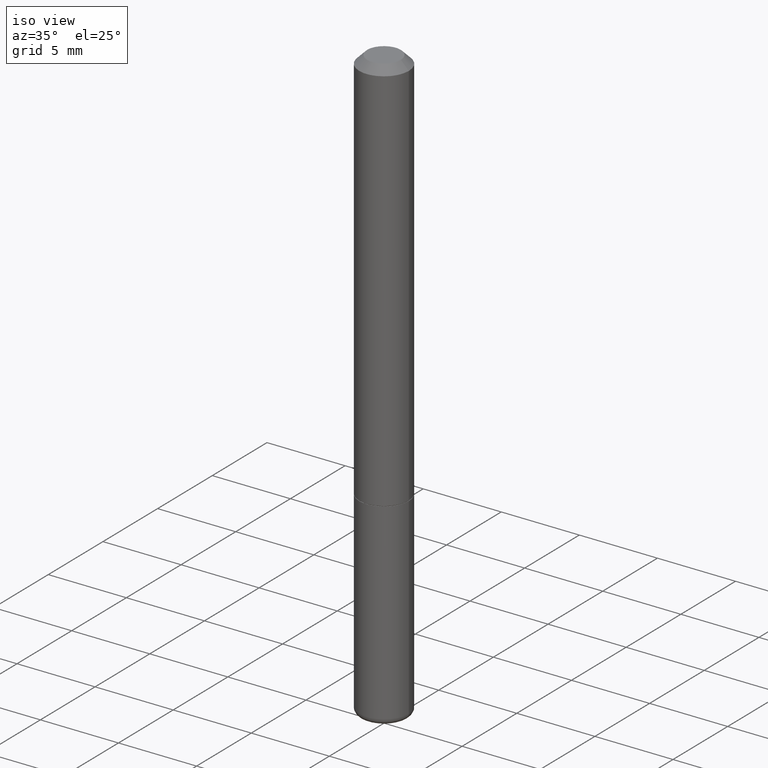
[diagram: clean part render]
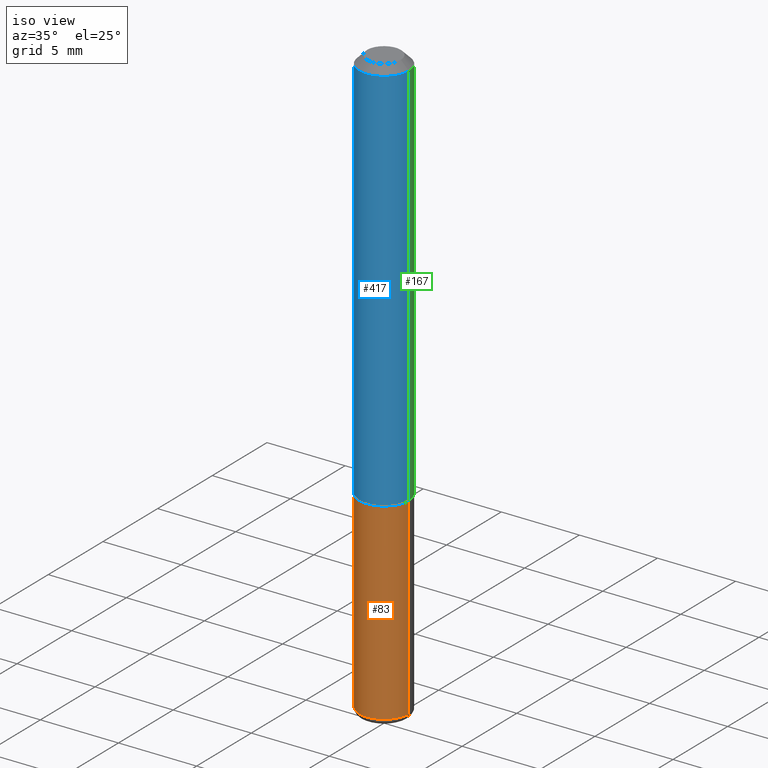
[diagram: same view with three faces highlighted in distinct colors, each labeled with its STEP entity id]
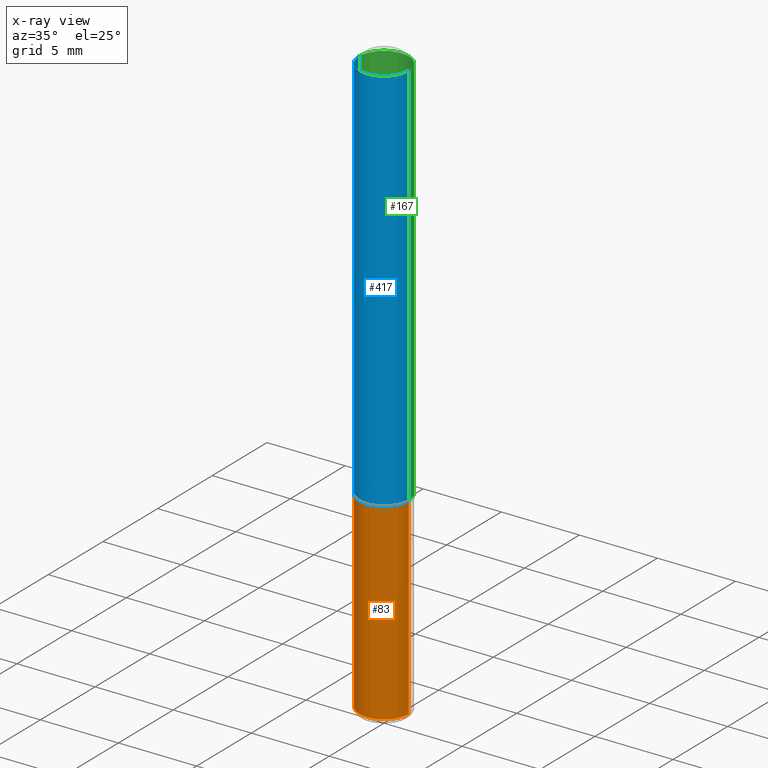
[diagram: x-ray of the same camera — body ghosted, the three highlighted faces saturated]
A machine part, iso view with three faces highlighted in distinct colors.
The next image is the same camera in x-ray (body ghosted, the three faces saturated) — at least one of them is partly hidden behind the body in this view.
Their STEP definitions:

[orange] entity #83 — the highlighted cylindrical surface (edge-blend (fillet) strip) has radius 1.5875 mm, axis along (-0, 0, 1).
#8 = AXIS2_PLACEMENT_3D ( 'NONE', #14, #155, #158 ) ;
#13 = CARTESIAN_POINT ( 'NONE',  ( 0.06250000000000001388, -3.927916506198538435E-15, -1.000000000000000222 ) ) ;
#14 = CARTESIAN_POINT ( 'NONE',  ( 3.631571448635045368E-29, -5.184921562489524681E-15, -1.485020556978682515 ) ) ;
#17 = EDGE_CURVE ( 'NONE', #285, #205, #218, .T. ) ;
#24 = CIRCLE ( 'NONE', #300, 0.06250000000000001388 ) ;
#25 = CARTESIAN_POINT ( 'NONE',  ( 0.000000000000000000, 0.000000000000000000, 0.000000000000000000 ) ) ;
#28 = EDGE_LOOP ( 'NONE', ( #63, #102, #395, #237 ) ) ;
#30 = DIRECTION ( 'NONE',  ( -2.445468806185136877E-29, 3.491481338843145188E-15, 1.000000000000000000 ) ) ;
#34 = DIRECTION ( 'NONE',  ( -2.445468806185136877E-29, 3.491481338843145188E-15, 1.000000000000000000 ) ) ;
#46 = CARTESIAN_POINT ( 'NONE',  ( 0.06249999999999975020, -5.621356729844913983E-15, -1.485020556978682515 ) ) ;
#53 = EDGE_CURVE ( 'NONE', #285, #140, #325, .T. ) ;
#63 = ORIENTED_EDGE ( 'NONE', *, *, #53, .F. ) ;
#83 = ADVANCED_FACE ( 'NONE', ( #397 ), #93, .T. ) ;
#93 = CYLINDRICAL_SURFACE ( 'NONE', #132, 0.06249999999999988204 ) ;
#102 = ORIENTED_EDGE ( 'NONE', *, *, #17, .T. ) ;
#132 = AXIS2_PLACEMENT_3D ( 'NONE', #25, #166, #435 ) ;
#140 = VERTEX_POINT ( 'NONE', #335 ) ;
#142 = CARTESIAN_POINT ( 'NONE',  ( 2.445468806185137438E-29, -3.491481338843146371E-15, -1.000000000000000222 ) ) ;
#155 = DIRECTION ( 'NONE',  ( -2.445468806185136597E-29, 3.491481338843145583E-15, 1.000000000000000000 ) ) ;
#156 = VERTEX_POINT ( 'NONE', #13 ) ;
#158 = DIRECTION ( 'NONE',  ( 1.000000000000000000, -6.982962677686259611E-15, 0.000000000000000000 ) ) ;
#166 = DIRECTION ( 'NONE',  ( -2.445468806185136597E-29, 3.491481338843145583E-15, 1.000000000000000000 ) ) ;
#205 = VERTEX_POINT ( 'NONE', #46 ) ;
#213 = CARTESIAN_POINT ( 'NONE',  ( -0.06249999999999975020, -3.894112240816274685E-15, -1.485020556978682515 ) ) ;
#218 = CIRCLE ( 'NONE', #8, 0.06249999999999975020 ) ;
#237 = ORIENTED_EDGE ( 'NONE', *, *, #370, .F. ) ;
#242 = DIRECTION ( 'NONE',  ( -2.445468806185136597E-29, 3.491481338843145583E-15, 1.000000000000000000 ) ) ;
#268 = VECTOR ( 'NONE', #34, 39.37007874015748143 ) ;
#285 = VERTEX_POINT ( 'NONE', #213 ) ;
#287 = LINE ( 'NONE', #416, #268 ) ;
#300 = AXIS2_PLACEMENT_3D ( 'NONE', #142, #242, #312 ) ;
#312 = DIRECTION ( 'NONE',  ( 1.000000000000000000, -6.982962677686269077E-15, 0.000000000000000000 ) ) ;
#325 = LINE ( 'NONE', #338, #427 ) ;
#335 = CARTESIAN_POINT ( 'NONE',  ( -0.06250000000000001388, -3.894112240816274685E-15, -1.000000000000000222 ) ) ;
#338 = CARTESIAN_POINT ( 'NONE',  ( -0.06249999999999988204, 4.440892098500617780E-16, -3.074334431409310158E-30 ) ) ;
#370 = EDGE_CURVE ( 'NONE', #140, #156, #24, .T. ) ;
#395 = ORIENTED_EDGE ( 'NONE', *, *, #411, .T. ) ;
#397 = FACE_OUTER_BOUND ( 'NONE', #28, .T. ) ;
#411 = EDGE_CURVE ( 'NONE', #205, #156, #287, .T. ) ;
#416 = CARTESIAN_POINT ( 'NONE',  ( 0.06249999999999988204, -4.364351673553908312E-16, 3.047610484872453915E-30 ) ) ;
#427 = VECTOR ( 'NONE', #30, 39.37007874015748143 ) ;
#435 = DIRECTION ( 'NONE',  ( 1.000000000000000000, -6.982962677686266711E-15, 4.876176775795935232E-29 ) ) ;

[blue] entity #417 — the highlighted cylindrical surface (edge-blend (fillet) strip) has radius 1.5875 mm, axis along (-0, 0, 1).
#10 = AXIS2_PLACEMENT_3D ( 'NONE', #440, #39, #68 ) ;
#18 = ORIENTED_EDGE ( 'NONE', *, *, #429, .F. ) ;
#20 = ORIENTED_EDGE ( 'NONE', *, *, #32, .T. ) ;
#32 = EDGE_CURVE ( 'NONE', #337, #100, #231, .T. ) ;
#33 = VECTOR ( 'NONE', #394, 39.37007874015748143 ) ;
#39 = DIRECTION ( 'NONE',  ( -2.445468806185136597E-29, 3.491481338843145583E-15, 1.000000000000000000 ) ) ;
#62 = CIRCLE ( 'NONE', #81, 0.06249999999999981265 ) ;
#68 = DIRECTION ( 'NONE',  ( 1.000000000000000000, -6.982962677686268288E-15, 0.000000000000000000 ) ) ;
#81 = AXIS2_PLACEMENT_3D ( 'NONE', #349, #101, #177 ) ;
#94 = VERTEX_POINT ( 'NONE', #317 ) ;
#100 = VERTEX_POINT ( 'NONE', #108 ) ;
#101 = DIRECTION ( 'NONE',  ( -2.445468806185136597E-29, 3.491481338843145583E-15, 1.000000000000000000 ) ) ;
#108 = CARTESIAN_POINT ( 'NONE',  ( 0.06249999999999981265, -4.986107516375823445E-16, -0.01999999999999999001 ) ) ;
#169 = CARTESIAN_POINT ( 'NONE',  ( 0.000000000000000000, 0.000000000000000000, 0.000000000000000000 ) ) ;
#172 = CARTESIAN_POINT ( 'NONE',  ( -0.06249999999999988204, 4.440892098500617780E-16, -3.074334431409310158E-30 ) ) ;
#174 = VERTEX_POINT ( 'NONE', #431 ) ;
#177 = DIRECTION ( 'NONE',  ( 1.000000000000000000, -6.982962677686266711E-15, 0.000000000000000000 ) ) ;
#179 = EDGE_LOOP ( 'NONE', ( #18, #304, #20, #209 ) ) ;
#190 = VECTOR ( 'NONE', #191, 39.37007874015748143 ) ;
#191 = DIRECTION ( 'NONE',  ( -2.445468806185136877E-29, 3.491481338843145188E-15, 1.000000000000000000 ) ) ;
#208 = LINE ( 'NONE', #172, #190 ) ;
#209 = ORIENTED_EDGE ( 'NONE', *, *, #364, .F. ) ;
#211 = CIRCLE ( 'NONE', #10, 0.06249999999999995143 ) ;
#231 = LINE ( 'NONE', #428, #33 ) ;
#241 = FACE_OUTER_BOUND ( 'NONE', #179, .T. ) ;
#257 = EDGE_CURVE ( 'NONE', #174, #337, #211, .T. ) ;
#279 = CARTESIAN_POINT ( 'NONE',  ( 0.06249999999999995143, -3.924425024859695428E-15, -0.9990000000000004432 ) ) ;
#304 = ORIENTED_EDGE ( 'NONE', *, *, #257, .T. ) ;
#305 = DIRECTION ( 'NONE',  ( -2.445468806185136597E-29, 3.491481338843145583E-15, 1.000000000000000000 ) ) ;
#310 = CYLINDRICAL_SURFACE ( 'NONE', #386, 0.06249999999999988204 ) ;
#317 = CARTESIAN_POINT ( 'NONE',  ( -0.06249999999999981265, 3.666055405785274344E-16, -0.01999999999999999001 ) ) ;
#337 = VERTEX_POINT ( 'NONE', #279 ) ;
#349 = CARTESIAN_POINT ( 'NONE',  ( 4.890937612370270531E-31, -6.982962677686289144E-17, -0.01999999999999999001 ) ) ;
#364 = EDGE_CURVE ( 'NONE', #94, #100, #62, .T. ) ;
#386 = AXIS2_PLACEMENT_3D ( 'NONE', #169, #305, #436 ) ;
#394 = DIRECTION ( 'NONE',  ( -2.445468806185136877E-29, 3.491481338843145188E-15, 1.000000000000000000 ) ) ;
#417 = ADVANCED_FACE ( 'NONE', ( #241 ), #310, .T. ) ;
#428 = CARTESIAN_POINT ( 'NONE',  ( 0.06249999999999988204, -4.364351673553908312E-16, 3.047610484872453915E-30 ) ) ;
#429 = EDGE_CURVE ( 'NONE', #174, #94, #208, .T. ) ;
#431 = CARTESIAN_POINT ( 'NONE',  ( -0.06249999999999995143, -1.334820532290519137E-15, -0.9990000000000004432 ) ) ;
#436 = DIRECTION ( 'NONE',  ( 1.000000000000000000, -6.982962677686266711E-15, 4.876176775795935232E-29 ) ) ;
#440 = CARTESIAN_POINT ( 'NONE',  ( 2.443023337378952675E-29, -3.487989857504303759E-15, -0.9990000000000004432 ) ) ;

[green] entity #167 — the highlighted cylindrical surface (edge-blend (fillet) strip) has radius 1.5875 mm, axis along (-0, 0, 1).
#29 = DIRECTION ( 'NONE',  ( 1.000000000000000000, -6.982962677686268288E-15, 0.000000000000000000 ) ) ;
#32 = EDGE_CURVE ( 'NONE', #337, #100, #231, .T. ) ;
#33 = VECTOR ( 'NONE', #394, 39.37007874015748143 ) ;
#38 = ORIENTED_EDGE ( 'NONE', *, *, #429, .T. ) ;
#64 = DIRECTION ( 'NONE',  ( -2.445468806185136597E-29, 3.491481338843145583E-15, 1.000000000000000000 ) ) ;
#84 = FACE_OUTER_BOUND ( 'NONE', #165, .T. ) ;
#88 = AXIS2_PLACEMENT_3D ( 'NONE', #379, #284, #350 ) ;
#94 = VERTEX_POINT ( 'NONE', #317 ) ;
#100 = VERTEX_POINT ( 'NONE', #108 ) ;
#108 = CARTESIAN_POINT ( 'NONE',  ( 0.06249999999999981265, -4.986107516375823445E-16, -0.01999999999999999001 ) ) ;
#111 = AXIS2_PLACEMENT_3D ( 'NONE', #271, #318, #148 ) ;
#117 = EDGE_CURVE ( 'NONE', #100, #94, #199, .T. ) ;
#126 = CIRCLE ( 'NONE', #164, 0.06249999999999995143 ) ;
#148 = DIRECTION ( 'NONE',  ( 1.000000000000000000, -6.982962677686266711E-15, 4.876176775795935232E-29 ) ) ;
#164 = AXIS2_PLACEMENT_3D ( 'NONE', #215, #64, #29 ) ;
#165 = EDGE_LOOP ( 'NONE', ( #396, #38, #333, #392 ) ) ;
#167 = ADVANCED_FACE ( 'NONE', ( #84 ), #336, .T. ) ;
#172 = CARTESIAN_POINT ( 'NONE',  ( -0.06249999999999988204, 4.440892098500617780E-16, -3.074334431409310158E-30 ) ) ;
#174 = VERTEX_POINT ( 'NONE', #431 ) ;
#190 = VECTOR ( 'NONE', #191, 39.37007874015748143 ) ;
#191 = DIRECTION ( 'NONE',  ( -2.445468806185136877E-29, 3.491481338843145188E-15, 1.000000000000000000 ) ) ;
#199 = CIRCLE ( 'NONE', #88, 0.06249999999999981265 ) ;
#208 = LINE ( 'NONE', #172, #190 ) ;
#215 = CARTESIAN_POINT ( 'NONE',  ( 2.443023337378952675E-29, -3.487989857504303759E-15, -0.9990000000000004432 ) ) ;
#231 = LINE ( 'NONE', #428, #33 ) ;
#271 = CARTESIAN_POINT ( 'NONE',  ( 0.000000000000000000, 0.000000000000000000, 0.000000000000000000 ) ) ;
#279 = CARTESIAN_POINT ( 'NONE',  ( 0.06249999999999995143, -3.924425024859695428E-15, -0.9990000000000004432 ) ) ;
#284 = DIRECTION ( 'NONE',  ( -2.445468806185136597E-29, 3.491481338843145583E-15, 1.000000000000000000 ) ) ;
#317 = CARTESIAN_POINT ( 'NONE',  ( -0.06249999999999981265, 3.666055405785274344E-16, -0.01999999999999999001 ) ) ;
#318 = DIRECTION ( 'NONE',  ( -2.445468806185136597E-29, 3.491481338843145583E-15, 1.000000000000000000 ) ) ;
#333 = ORIENTED_EDGE ( 'NONE', *, *, #117, .F. ) ;
#336 = CYLINDRICAL_SURFACE ( 'NONE', #111, 0.06249999999999988204 ) ;
#337 = VERTEX_POINT ( 'NONE', #279 ) ;
#350 = DIRECTION ( 'NONE',  ( 1.000000000000000000, -6.982962677686266711E-15, 0.000000000000000000 ) ) ;
#379 = CARTESIAN_POINT ( 'NONE',  ( 4.890937612370270531E-31, -6.982962677686289144E-17, -0.01999999999999999001 ) ) ;
#392 = ORIENTED_EDGE ( 'NONE', *, *, #32, .F. ) ;
#394 = DIRECTION ( 'NONE',  ( -2.445468806185136877E-29, 3.491481338843145188E-15, 1.000000000000000000 ) ) ;
#396 = ORIENTED_EDGE ( 'NONE', *, *, #399, .T. ) ;
#399 = EDGE_CURVE ( 'NONE', #337, #174, #126, .T. ) ;
#428 = CARTESIAN_POINT ( 'NONE',  ( 0.06249999999999988204, -4.364351673553908312E-16, 3.047610484872453915E-30 ) ) ;
#429 = EDGE_CURVE ( 'NONE', #174, #94, #208, .T. ) ;
#431 = CARTESIAN_POINT ( 'NONE',  ( -0.06249999999999995143, -1.334820532290519137E-15, -0.9990000000000004432 ) ) ;